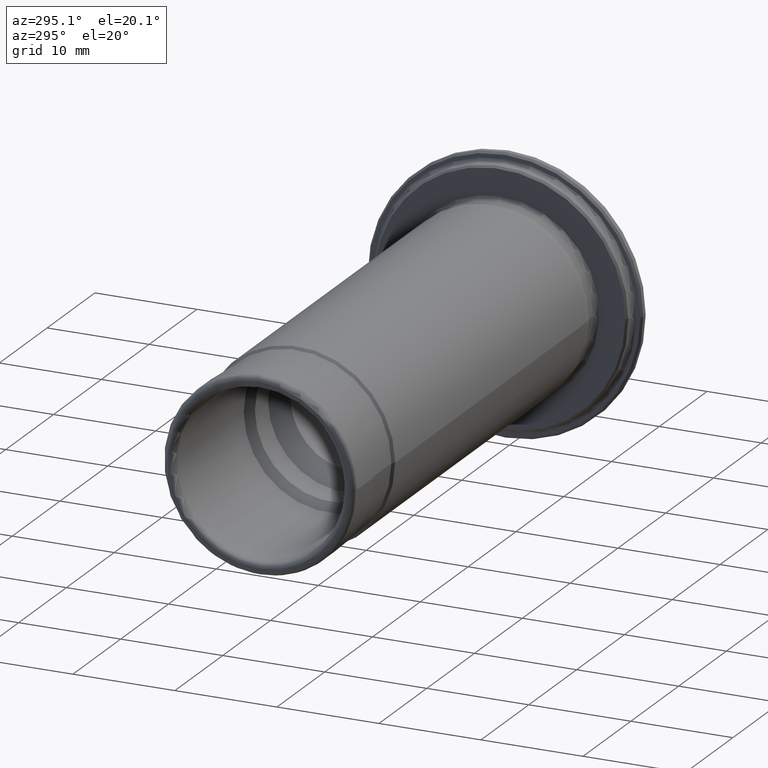
[diagram: clean part render]
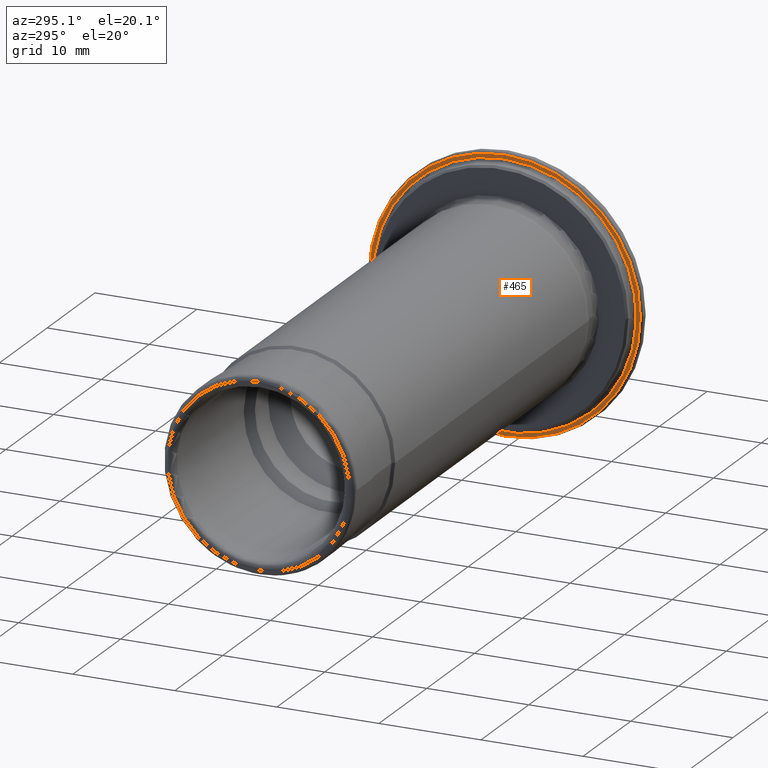
[diagram: same view with one face highlighted and labeled with its STEP entity id]
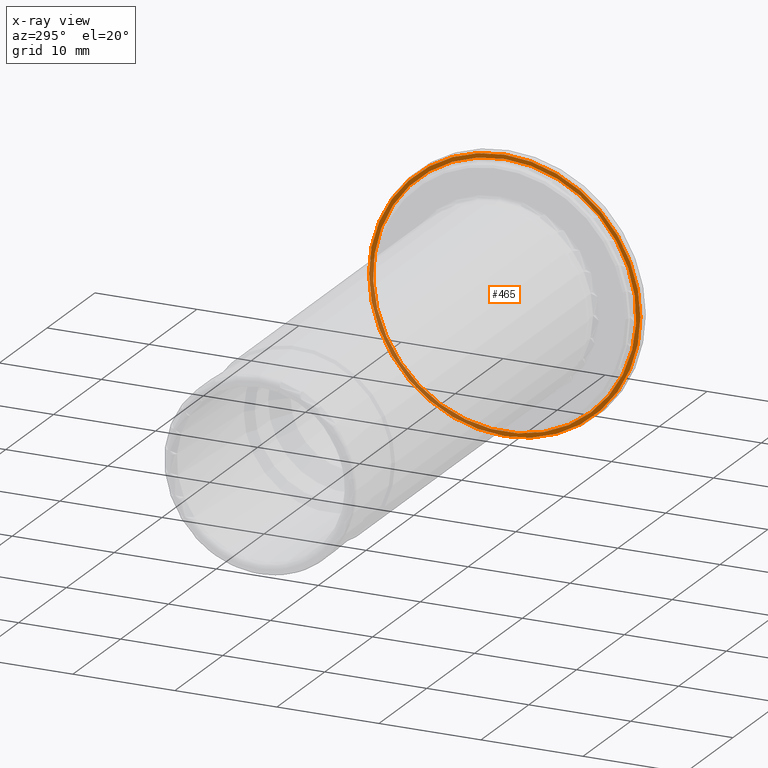
[diagram: x-ray of the same camera — body ghosted, the highlighted face saturated]
A machine part, auxiliary view. The second image highlights one B-rep face of the part: STEP entity #465.
The next image is the same camera in x-ray: the body ghosted, the highlighted face saturated — about 26% of this face is hidden behind the body in this view.
In plain terms, the highlighted planar face has unit normal (-1, 0, 0).
Its self-contained STEP definition (entity closure, byte-faithful):
#15=FACE_BOUND('',#118,.T.);
#19=PLANE('',#541);
#87=FACE_OUTER_BOUND('',#117,.T.);
#117=EDGE_LOOP('',(#349));
#118=EDGE_LOOP('',(#350));
#158=CIRCLE('',#540,12.8999999999993);
#159=CIRCLE('',#542,13.3000000000003);
#201=VERTEX_POINT('',#815);
#202=VERTEX_POINT('',#819);
#253=EDGE_CURVE('',#201,#201,#158,.T.);
#254=EDGE_CURVE('',#202,#202,#159,.T.);
#349=ORIENTED_EDGE('',*,*,#254,.F.);
#350=ORIENTED_EDGE('',*,*,#253,.T.);
#465=ADVANCED_FACE('',(#87,#15),#19,.T.);
#540=AXIS2_PLACEMENT_3D('',#817,#664,#665);
#541=AXIS2_PLACEMENT_3D('',#818,#666,#667);
#542=AXIS2_PLACEMENT_3D('',#820,#668,#669);
#664=DIRECTION('center_axis',(1.,0.,0.));
#665=DIRECTION('ref_axis',(0.,0.,-1.));
#666=DIRECTION('center_axis',(-1.,0.,0.));
#667=DIRECTION('ref_axis',(0.,0.,1.));
#668=DIRECTION('center_axis',(1.,0.,0.));
#669=DIRECTION('ref_axis',(0.,0.,-1.));
#815=CARTESIAN_POINT('',(-1.00000000000177,-1.5797943709E-15,12.8999999999993));
#817=CARTESIAN_POINT('Origin',(-1.00000000000177,0.,0.));
#818=CARTESIAN_POINT('Origin',(-1.00000000000165,13.3000000000003,0.));
#819=CARTESIAN_POINT('',(-1.00000000000165,-13.3000000000003,-1.62878024286602E-15));
#820=CARTESIAN_POINT('Origin',(-1.00000000000165,0.,0.));